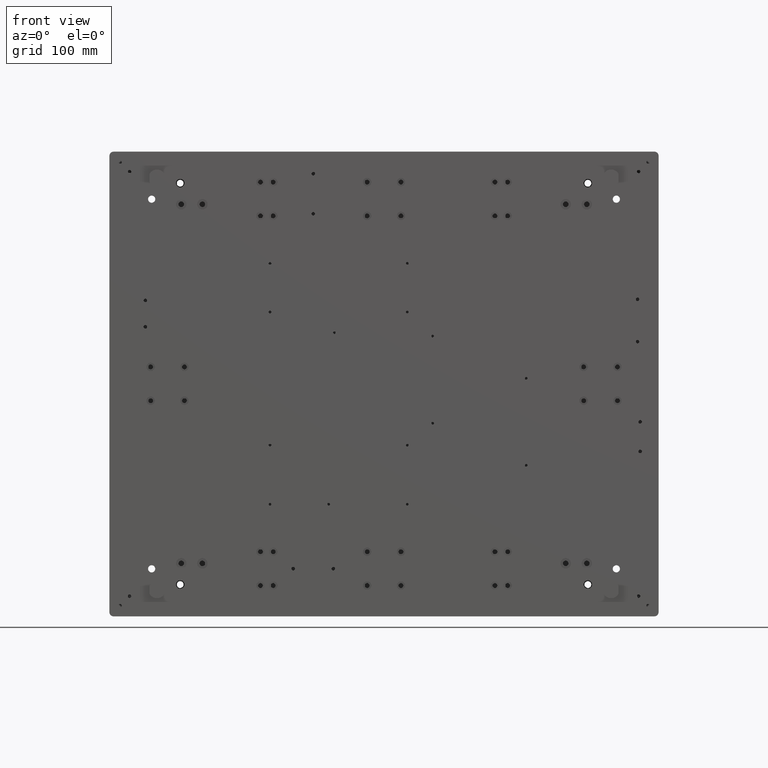
[diagram: clean part render]
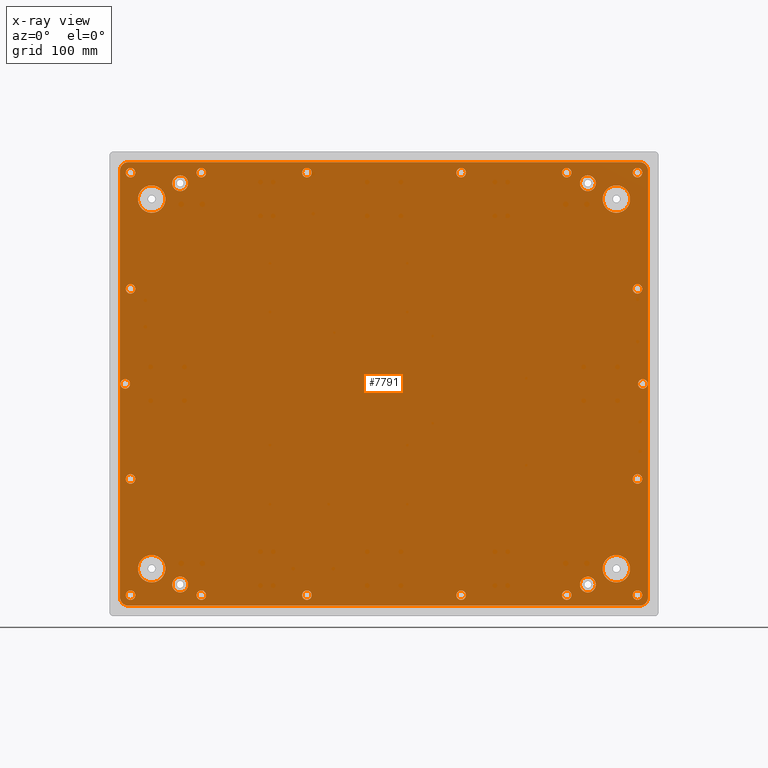
[diagram: x-ray — body ghosted, one internal face saturated and labeled with its STEP entity id]
A machine part, front view, then the same camera in x-ray: the body is ghosted and one INTERNAL B-rep face — a face not visible from any outside direction — is saturated and labeled: STEP entity #7791.
In plain terms, the highlighted planar face has unit normal (0, 1, 0).
Its self-contained STEP definition (entity closure, byte-faithful):
#170 = ORIENTED_EDGE ( 'NONE', *, *, #2572, .T. ) ;
#217 = ORIENTED_EDGE ( 'NONE', *, *, #29685, .T. ) ;
#275 = DIRECTION ( 'NONE',  ( -0.000000000000000000, -1.000000000000000000, -0.000000000000000000 ) ) ;
#343 = EDGE_LOOP ( 'NONE', ( #26153, #15022, #11797, #23972, #23938, #170, #9103, #27448 ) ) ;
#356 = DIRECTION ( 'NONE',  ( 0.000000000000000000, -0.000000000000000000, 1.000000000000000000 ) ) ;
#570 = VERTEX_POINT ( 'NONE', #24181 ) ;
#885 = AXIS2_PLACEMENT_3D ( 'NONE', #28562, #24997, #25593 ) ;
#1038 = DIRECTION ( 'NONE',  ( 0.000000000000000000, 0.000000000000000000, 1.000000000000000000 ) ) ;
#1041 = VECTOR ( 'NONE', #18596, 1000.000000000000000 ) ;
#1115 = EDGE_CURVE ( 'NONE', #23060, #23060, #11438, .T. ) ;
#1159 = DIRECTION ( 'NONE',  ( 0.000000000000000000, 0.000000000000000000, 1.000000000000000000 ) ) ;
#1370 = ORIENTED_EDGE ( 'NONE', *, *, #36584, .T. ) ;
#1463 = DIRECTION ( 'NONE',  ( 0.000000000000000000, -1.000000000000000000, 0.000000000000000000 ) ) ;
#1679 = ORIENTED_EDGE ( 'NONE', *, *, #22264, .T. ) ;
#1989 = CARTESIAN_POINT ( 'NONE',  ( -208.5487244020048934, 101.1371811005063535, 319.5000000000011937 ) ) ;
#2104 = AXIS2_PLACEMENT_3D ( 'NONE', #4217, #19288, #3629 ) ;
#2168 = EDGE_LOOP ( 'NONE', ( #18437 ) ) ;
#2171 = ORIENTED_EDGE ( 'NONE', *, *, #1115, .T. ) ;
#2202 = CARTESIAN_POINT ( 'NONE',  ( -228.5487244020049786, 101.1371811005063535, 325.0000000000012506 ) ) ;
#2347 = EDGE_LOOP ( 'NONE', ( #17965 ) ) ;
#2359 = DIRECTION ( 'NONE',  ( 0.000000000000000000, 0.000000000000000000, -1.000000000000000000 ) ) ;
#2513 = CARTESIAN_POINT ( 'NONE',  ( -275.5487244020049502, 101.1371811005063535, 609.5000000000011369 ) ) ;
#2566 = VERTEX_POINT ( 'NONE', #17240 ) ;
#2572 = EDGE_CURVE ( 'NONE', #5593, #8448, #6511, .T. ) ;
#2595 = EDGE_LOOP ( 'NONE', ( #28747 ) ) ;
#2734 = FACE_BOUND ( 'NONE', #8623, .T. ) ;
#2781 = DIRECTION ( 'NONE',  ( 0.000000000000000000, 0.000000000000000000, 1.000000000000000000 ) ) ;
#2793 = EDGE_CURVE ( 'NONE', #14890, #14890, #20094, .T. ) ;
#2803 = CARTESIAN_POINT ( 'NONE',  ( 137.4512755979950782, 101.1371811005063535, 319.5000000000011369 ) ) ;
#3029 = DIRECTION ( 'NONE',  ( -0.000000000000000000, -1.000000000000000000, -0.000000000000000000 ) ) ;
#3054 = CARTESIAN_POINT ( 'NONE',  ( -277.5487244020049502, 101.1371811005063535, 725.0000000000011369 ) ) ;
#3312 = FACE_BOUND ( 'NONE', #12731, .T. ) ;
#3567 = DIRECTION ( 'NONE',  ( 0.000000000000000000, -1.000000000000000000, 0.000000000000000000 ) ) ;
#3629 = DIRECTION ( 'NONE',  ( 0.000000000000000000, 0.000000000000000000, -1.000000000000000000 ) ) ;
#3773 = VERTEX_POINT ( 'NONE', #30945 ) ;
#3775 = EDGE_CURVE ( 'NONE', #3773, #3773, #15086, .T. ) ;
#3955 = DIRECTION ( 'NONE',  ( 0.000000000000000000, -1.000000000000000000, 0.000000000000000000 ) ) ;
#4003 = CARTESIAN_POINT ( 'NONE',  ( -255.5487244020049218, 101.1371811005063535, 340.0000000000011937 ) ) ;
#4110 = VERTEX_POINT ( 'NONE', #13234 ) ;
#4127 = VERTEX_POINT ( 'NONE', #37458 ) ;
#4217 = CARTESIAN_POINT ( 'NONE',  ( -277.5487244020049502, 101.1371811005063535, 313.0000000000011937 ) ) ;
#4320 = AXIS2_PLACEMENT_3D ( 'NONE', #35183, #8023, #29233 ) ;
#4329 = CIRCLE ( 'NONE', #37253, 7.499999999999951150 ) ;
#4477 = EDGE_CURVE ( 'NONE', #27638, #10515, #22880, .T. ) ;
#4606 = DIRECTION ( 'NONE',  ( 0.000000000000000000, 0.000000000000000000, 1.000000000000000000 ) ) ;
#4637 = ORIENTED_EDGE ( 'NONE', *, *, #2793, .T. ) ;
#4688 = DIRECTION ( 'NONE',  ( 0.000000000000000000, 0.000000000000000000, 1.000000000000000000 ) ) ;
#4730 = VERTEX_POINT ( 'NONE', #19186 ) ;
#4747 = CARTESIAN_POINT ( 'NONE',  ( 37.45127559799509243, 101.1371811005063535, 315.0000000000011937 ) ) ;
#4847 = DIRECTION ( 'NONE',  ( 0.000000000000000000, 0.000000000000000000, 1.000000000000000000 ) ) ;
#4895 = DIRECTION ( 'NONE',  ( 0.000000000000000000, 0.000000000000000000, 1.000000000000000000 ) ) ;
#4897 = CARTESIAN_POINT ( 'NONE',  ( 204.4512755979951066, 101.1371811005063535, 425.0000000000011937 ) ) ;
#5223 = CARTESIAN_POINT ( 'NONE',  ( -108.5487244020048223, 101.1371811005063535, 719.5000000000011369 ) ) ;
#5271 = CIRCLE ( 'NONE', #35656, 13.00000000000001066 ) ;
#5354 = DIRECTION ( 'NONE',  ( -0.000000000000000000, -1.000000000000000000, -0.000000000000000000 ) ) ;
#5593 = VERTEX_POINT ( 'NONE', #26332 ) ;
#5906 = CIRCLE ( 'NONE', #2104, 8.000000000000007105 ) ;
#5923 = FACE_BOUND ( 'NONE', #20495, .T. ) ;
#5985 = CARTESIAN_POINT ( 'NONE',  ( 184.4512755979951066, 101.1371811005063535, 690.0000000000011369 ) ) ;
#6025 = AXIS2_PLACEMENT_3D ( 'NONE', #23267, #10973, #4847 ) ;
#6038 = EDGE_CURVE ( 'NONE', #27638, #16382, #38381, .T. ) ;
#6117 = FACE_BOUND ( 'NONE', #17170, .T. ) ;
#6260 = DIRECTION ( 'NONE',  ( -1.000000000000000000, -0.000000000000000000, 0.000000000000000000 ) ) ;
#6316 = FACE_BOUND ( 'NONE', #16236, .T. ) ;
#6488 = EDGE_LOOP ( 'NONE', ( #31961 ) ) ;
#6511 = LINE ( 'NONE', #36833, #1041 ) ;
#6517 = AXIS2_PLACEMENT_3D ( 'NONE', #31130, #3955, #16037 ) ;
#6532 = CIRCLE ( 'NONE', #33752, 4.499999999999948486 ) ;
#6549 = DIRECTION ( 'NONE',  ( 0.000000000000000000, -1.000000000000000000, 0.000000000000000000 ) ) ;
#6922 = CARTESIAN_POINT ( 'NONE',  ( 157.4512755979951066, 101.1371811005063535, 712.5000000000012506 ) ) ;
#6947 = CARTESIAN_POINT ( 'NONE',  ( -208.5487244020048081, 101.1371811005063535, 715.0000000000010232 ) ) ;
#7057 = CARTESIAN_POINT ( 'NONE',  ( 137.4512755979951066, 101.1371811005063535, 719.5000000000010232 ) ) ;
#7166 = ORIENTED_EDGE ( 'NONE', *, *, #25648, .T. ) ;
#7273 = EDGE_CURVE ( 'NONE', #2566, #2566, #25806, .T. ) ;
#7535 = CIRCLE ( 'NONE', #32220, 8.000000000000007105 ) ;
#7650 = ORIENTED_EDGE ( 'NONE', *, *, #7841, .T. ) ;
#7667 = LINE ( 'NONE', #19756, #27882 ) ;
#7791 = ADVANCED_FACE ( 'NONE', ( #35871, #15021, #21565, #9473, #15409, #12238, #39235, #12051, #21180, #6316, #36249, #2734, #36064, #20800, #9081, #18392, #24348, #36442, #33274, #8902, #30484, #5923, #6117, #26933, #14823, #18194, #3312 ), #33078, .T. ) ;
#7823 = ORIENTED_EDGE ( 'NONE', *, *, #13134, .T. ) ;
#7841 = EDGE_CURVE ( 'NONE', #7950, #7950, #30790, .T. ) ;
#7875 = CIRCLE ( 'NONE', #885, 4.499999999999948486 ) ;
#7950 = VERTEX_POINT ( 'NONE', #1989 ) ;
#8023 = DIRECTION ( 'NONE',  ( 0.000000000000000000, -1.000000000000000000, 0.000000000000000000 ) ) ;
#8031 = CARTESIAN_POINT ( 'NONE',  ( 214.4512755979951351, 101.1371811005063535, 313.0000000000011937 ) ) ;
#8061 = CARTESIAN_POINT ( 'NONE',  ( 204.4512755979951066, 101.1371811005063535, 605.0000000000011369 ) ) ;
#8333 = CARTESIAN_POINT ( 'NONE',  ( 206.4512755979950782, 101.1371811005063535, 717.0000000000011369 ) ) ;
#8448 = VERTEX_POINT ( 'NONE', #8031 ) ;
#8623 = EDGE_LOOP ( 'NONE', ( #21843 ) ) ;
#8675 = VERTEX_POINT ( 'NONE', #2513 ) ;
#8827 = VECTOR ( 'NONE', #11205, 1000.000000000000000 ) ;
#8828 = EDGE_CURVE ( 'NONE', #33292, #33292, #6532, .T. ) ;
#8902 = FACE_BOUND ( 'NONE', #9178, .T. ) ;
#9037 = EDGE_CURVE ( 'NONE', #5593, #16382, #28720, .T. ) ;
#9081 = FACE_BOUND ( 'NONE', #29491, .T. ) ;
#9103 = ORIENTED_EDGE ( 'NONE', *, *, #17100, .F. ) ;
#9124 = CIRCLE ( 'NONE', #31277, 4.500000000000003553 ) ;
#9147 = CARTESIAN_POINT ( 'NONE',  ( -228.5487244020049218, 101.1371811005063535, 705.0000000000011369 ) ) ;
#9150 = CARTESIAN_POINT ( 'NONE',  ( 157.4512755979950782, 101.1371811005063535, 325.0000000000011937 ) ) ;
#9164 = CARTESIAN_POINT ( 'NONE',  ( 206.4512755979951066, 101.1371811005063535, 305.0000000000011937 ) ) ;
#9178 = EDGE_LOOP ( 'NONE', ( #36142 ) ) ;
#9395 = VERTEX_POINT ( 'NONE', #21488 ) ;
#9406 = AXIS2_PLACEMENT_3D ( 'NONE', #2202, #14294, #26398 ) ;
#9473 = FACE_BOUND ( 'NONE', #14512, .T. ) ;
#9502 = ORIENTED_EDGE ( 'NONE', *, *, #22499, .T. ) ;
#9616 = EDGE_LOOP ( 'NONE', ( #15584 ) ) ;
#9724 = AXIS2_PLACEMENT_3D ( 'NONE', #8333, #5354, #2359 ) ;
#9895 = ORIENTED_EDGE ( 'NONE', *, *, #33053, .T. ) ;
#10022 = CARTESIAN_POINT ( 'NONE',  ( 204.4512755979951066, 101.1371811005063535, 609.5000000000010232 ) ) ;
#10407 = AXIS2_PLACEMENT_3D ( 'NONE', #22263, #31791, #16901 ) ;
#10452 = EDGE_CURVE ( 'NONE', #4110, #4110, #33145, .T. ) ;
#10463 = CARTESIAN_POINT ( 'NONE',  ( -285.5487244020049502, 101.1371811005063535, 717.0000000000011369 ) ) ;
#10488 = CIRCLE ( 'NONE', #26352, 4.500000000000059508 ) ;
#10497 = DIRECTION ( 'NONE',  ( 0.000000000000000000, -1.000000000000000000, 0.000000000000000000 ) ) ;
#10515 = VERTEX_POINT ( 'NONE', #10463 ) ;
#10555 = AXIS2_PLACEMENT_3D ( 'NONE', #37930, #25824, #4606 ) ;
#10885 = DIRECTION ( 'NONE',  ( 0.000000000000000000, -1.000000000000000000, 0.000000000000000000 ) ) ;
#10973 = DIRECTION ( 'NONE',  ( 0.000000000000000000, -1.000000000000000000, 0.000000000000000000 ) ) ;
#11200 = CIRCLE ( 'NONE', #10555, 4.500000000000059508 ) ;
#11205 = DIRECTION ( 'NONE',  ( 1.000000000000000000, -0.000000000000000000, 0.000000000000000000 ) ) ;
#11378 = EDGE_CURVE ( 'NONE', #32858, #32858, #7875, .T. ) ;
#11438 = CIRCLE ( 'NONE', #24745, 13.00000000000001066 ) ;
#11443 = AXIS2_PLACEMENT_3D ( 'NONE', #28875, #37807, #4688 ) ;
#11445 = VERTEX_POINT ( 'NONE', #11634 ) ;
#11634 = CARTESIAN_POINT ( 'NONE',  ( -275.5487244020049502, 101.1371811005063535, 429.5000000000011937 ) ) ;
#11642 = CARTESIAN_POINT ( 'NONE',  ( -228.5487244020049218, 101.1371811005063535, 712.5000000000012506 ) ) ;
#11689 = VERTEX_POINT ( 'NONE', #32529 ) ;
#11712 = EDGE_CURVE ( 'NONE', #8675, #8675, #14233, .T. ) ;
#11793 = EDGE_LOOP ( 'NONE', ( #33291 ) ) ;
#11797 = ORIENTED_EDGE ( 'NONE', *, *, #4477, .F. ) ;
#11856 = CARTESIAN_POINT ( 'NONE',  ( -208.5487244020048934, 101.1371811005063535, 315.0000000000011937 ) ) ;
#12035 = VERTEX_POINT ( 'NONE', #36232 ) ;
#12051 = FACE_BOUND ( 'NONE', #2595, .T. ) ;
#12238 = FACE_BOUND ( 'NONE', #24191, .T. ) ;
#12593 = EDGE_CURVE ( 'NONE', #24452, #14971, #5906, .T. ) ;
#12731 = EDGE_LOOP ( 'NONE', ( #217 ) ) ;
#12940 = EDGE_LOOP ( 'NONE', ( #23583 ) ) ;
#13088 = AXIS2_PLACEMENT_3D ( 'NONE', #25329, #25127, #34254 ) ;
#13134 = EDGE_CURVE ( 'NONE', #9395, #9395, #26202, .T. ) ;
#13234 = CARTESIAN_POINT ( 'NONE',  ( 37.45127559799509243, 101.1371811005063535, 319.5000000000011937 ) ) ;
#13529 = CARTESIAN_POINT ( 'NONE',  ( -255.5487244020049218, 101.1371811005063535, 703.0000000000011369 ) ) ;
#13557 = DIRECTION ( 'NONE',  ( 0.000000000000000000, 0.000000000000000000, 1.000000000000000000 ) ) ;
#13590 = EDGE_CURVE ( 'NONE', #16904, #16904, #9124, .T. ) ;
#13647 = DIRECTION ( 'NONE',  ( 0.000000000000000000, -1.000000000000000000, 0.000000000000000000 ) ) ;
#13654 = VERTEX_POINT ( 'NONE', #31706 ) ;
#13680 = DIRECTION ( 'NONE',  ( 0.000000000000000000, 0.000000000000000000, 1.000000000000000000 ) ) ;
#13744 = CARTESIAN_POINT ( 'NONE',  ( 204.4512755979951066, 101.1371811005063535, 429.5000000000011937 ) ) ;
#13858 = VERTEX_POINT ( 'NONE', #11642 ) ;
#13943 = CARTESIAN_POINT ( 'NONE',  ( 204.4512755979950498, 101.1371811005063535, 319.5000000000011369 ) ) ;
#13999 = EDGE_CURVE ( 'NONE', #19490, #19490, #27525, .T. ) ;
#14233 = CIRCLE ( 'NONE', #36386, 4.500000000000059508 ) ;
#14262 = EDGE_LOOP ( 'NONE', ( #2171 ) ) ;
#14294 = DIRECTION ( 'NONE',  ( 0.000000000000000000, -1.000000000000000000, 0.000000000000000000 ) ) ;
#14512 = EDGE_LOOP ( 'NONE', ( #1370 ) ) ;
#14823 = FACE_BOUND ( 'NONE', #20998, .T. ) ;
#14890 = VERTEX_POINT ( 'NONE', #2803 ) ;
#14971 = VERTEX_POINT ( 'NONE', #36436 ) ;
#15021 = FACE_BOUND ( 'NONE', #2347, .T. ) ;
#15022 = ORIENTED_EDGE ( 'NONE', *, *, #25707, .T. ) ;
#15086 = CIRCLE ( 'NONE', #29025, 7.500000000000007105 ) ;
#15348 = CARTESIAN_POINT ( 'NONE',  ( 206.4512755979951066, 101.1371811005063535, 305.0000000000011937 ) ) ;
#15409 = FACE_BOUND ( 'NONE', #38602, .T. ) ;
#15584 = ORIENTED_EDGE ( 'NONE', *, *, #10452, .T. ) ;
#15624 = EDGE_CURVE ( 'NONE', #32384, #32384, #11200, .T. ) ;
#15713 = CIRCLE ( 'NONE', #19568, 13.00000000000001066 ) ;
#15854 = DIRECTION ( 'NONE',  ( 0.000000000000000000, -1.000000000000000000, 0.000000000000000000 ) ) ;
#16037 = DIRECTION ( 'NONE',  ( 0.000000000000000000, 0.000000000000000000, 1.000000000000000000 ) ) ;
#16051 = EDGE_CURVE ( 'NONE', #22017, #22017, #37824, .T. ) ;
#16236 = EDGE_LOOP ( 'NONE', ( #4637 ) ) ;
#16382 = VERTEX_POINT ( 'NONE', #17182 ) ;
#16500 = AXIS2_PLACEMENT_3D ( 'NONE', #8061, #19554, #4895 ) ;
#16665 = DIRECTION ( 'NONE',  ( 0.000000000000000000, -1.000000000000000000, 0.000000000000000000 ) ) ;
#16767 = DIRECTION ( 'NONE',  ( 0.000000000000000000, -1.000000000000000000, 0.000000000000000000 ) ) ;
#16901 = DIRECTION ( 'NONE',  ( 0.000000000000000000, 0.000000000000000000, 1.000000000000000000 ) ) ;
#16904 = VERTEX_POINT ( 'NONE', #13744 ) ;
#17030 = CARTESIAN_POINT ( 'NONE',  ( -275.5487244020049502, 101.1371811005063535, 425.0000000000011937 ) ) ;
#17100 = EDGE_CURVE ( 'NONE', #28070, #8448, #7535, .T. ) ;
#17170 = EDGE_LOOP ( 'NONE', ( #9502 ) ) ;
#17182 = CARTESIAN_POINT ( 'NONE',  ( 206.4512755979950498, 101.1371811005063535, 725.0000000000011369 ) ) ;
#17240 = CARTESIAN_POINT ( 'NONE',  ( 37.45127559799512085, 101.1371811005063535, 719.5000000000010232 ) ) ;
#17458 = EDGE_LOOP ( 'NONE', ( #21223 ) ) ;
#17931 = AXIS2_PLACEMENT_3D ( 'NONE', #17030, #32117, #37669 ) ;
#17965 = ORIENTED_EDGE ( 'NONE', *, *, #39256, .T. ) ;
#18017 = CARTESIAN_POINT ( 'NONE',  ( -208.5487244020048081, 101.1371811005063535, 719.5000000000010232 ) ) ;
#18194 = FACE_BOUND ( 'NONE', #6488, .T. ) ;
#18392 = FACE_BOUND ( 'NONE', #2168, .T. ) ;
#18437 = ORIENTED_EDGE ( 'NONE', *, *, #25548, .T. ) ;
#18596 = DIRECTION ( 'NONE',  ( 1.374038396813312784E-16, -0.000000000000000000, -1.000000000000000000 ) ) ;
#19186 = CARTESIAN_POINT ( 'NONE',  ( -275.5487244020049502, 101.1371811005063535, 319.5000000000011937 ) ) ;
#19288 = DIRECTION ( 'NONE',  ( -0.000000000000000000, -1.000000000000000000, -0.000000000000000000 ) ) ;
#19490 = VERTEX_POINT ( 'NONE', #13943 ) ;
#19554 = DIRECTION ( 'NONE',  ( 0.000000000000000000, -1.000000000000000000, 0.000000000000000000 ) ) ;
#19568 = AXIS2_PLACEMENT_3D ( 'NONE', #5985, #3567, #33334 ) ;
#19655 = AXIS2_PLACEMENT_3D ( 'NONE', #9147, #15854, #27962 ) ;
#19756 = CARTESIAN_POINT ( 'NONE',  ( -285.5487244020050071, 101.1371811005063535, 313.0000000000011937 ) ) ;
#20094 = CIRCLE ( 'NONE', #13088, 4.500000000000003553 ) ;
#20330 = CIRCLE ( 'NONE', #16500, 4.499999999999948486 ) ;
#20350 = DIRECTION ( 'NONE',  ( 0.000000000000000000, 0.000000000000000000, 1.000000000000000000 ) ) ;
#20495 = EDGE_LOOP ( 'NONE', ( #30239 ) ) ;
#20700 = CARTESIAN_POINT ( 'NONE',  ( -275.5487244020049502, 101.1371811005063535, 715.0000000000010232 ) ) ;
#20800 = FACE_BOUND ( 'NONE', #24753, .T. ) ;
#20929 = EDGE_CURVE ( 'NONE', #570, #570, #35644, .T. ) ;
#20981 = AXIS2_PLACEMENT_3D ( 'NONE', #27432, #275, #21097 ) ;
#20998 = EDGE_LOOP ( 'NONE', ( #28732 ) ) ;
#21097 = DIRECTION ( 'NONE',  ( 0.000000000000000000, 0.000000000000000000, -1.000000000000000000 ) ) ;
#21180 = FACE_BOUND ( 'NONE', #9616, .T. ) ;
#21223 = ORIENTED_EDGE ( 'NONE', *, *, #15624, .T. ) ;
#21488 = CARTESIAN_POINT ( 'NONE',  ( 184.4512755979951066, 101.1371811005063535, 353.0000000000011937 ) ) ;
#21565 = FACE_BOUND ( 'NONE', #14262, .T. ) ;
#21843 = ORIENTED_EDGE ( 'NONE', *, *, #13590, .T. ) ;
#21974 = AXIS2_PLACEMENT_3D ( 'NONE', #25570, #10497, #23575 ) ;
#22017 = VERTEX_POINT ( 'NONE', #24421 ) ;
#22263 = CARTESIAN_POINT ( 'NONE',  ( -275.5487244020049502, 101.1371811005063535, 315.0000000000011937 ) ) ;
#22264 = EDGE_CURVE ( 'NONE', #4730, #4730, #34476, .T. ) ;
#22317 = VERTEX_POINT ( 'NONE', #10022 ) ;
#22476 = AXIS2_PLACEMENT_3D ( 'NONE', #27517, #30096, #356 ) ;
#22499 = EDGE_CURVE ( 'NONE', #11445, #11445, #23649, .T. ) ;
#22880 = CIRCLE ( 'NONE', #20981, 8.000000000000007105 ) ;
#23060 = VERTEX_POINT ( 'NONE', #13529 ) ;
#23267 = CARTESIAN_POINT ( 'NONE',  ( 204.4512755979950498, 101.1371811005063535, 315.0000000000011369 ) ) ;
#23473 = ORIENTED_EDGE ( 'NONE', *, *, #13999, .T. ) ;
#23575 = DIRECTION ( 'NONE',  ( 0.000000000000000000, 0.000000000000000000, 1.000000000000000000 ) ) ;
#23583 = ORIENTED_EDGE ( 'NONE', *, *, #11712, .T. ) ;
#23649 = CIRCLE ( 'NONE', #17931, 4.500000000000003553 ) ;
#23837 = DIRECTION ( 'NONE',  ( 0.000000000000000000, -1.000000000000000000, 0.000000000000000000 ) ) ;
#23938 = ORIENTED_EDGE ( 'NONE', *, *, #9037, .F. ) ;
#23967 = DIRECTION ( 'NONE',  ( 0.000000000000000000, -1.000000000000000000, 0.000000000000000000 ) ) ;
#23972 = ORIENTED_EDGE ( 'NONE', *, *, #6038, .T. ) ;
#23985 = CIRCLE ( 'NONE', #4320, 4.499999999999948486 ) ;
#24088 = CARTESIAN_POINT ( 'NONE',  ( -285.5487244020050071, 101.1371811005063535, 313.0000000000011937 ) ) ;
#24181 = CARTESIAN_POINT ( 'NONE',  ( -108.5487244020049076, 101.1371811005063535, 319.5000000000011937 ) ) ;
#24191 = EDGE_LOOP ( 'NONE', ( #1679 ) ) ;
#24220 = DIRECTION ( 'NONE',  ( 0.000000000000000000, 0.000000000000000000, 1.000000000000000000 ) ) ;
#24348 = FACE_BOUND ( 'NONE', #35223, .T. ) ;
#24421 = CARTESIAN_POINT ( 'NONE',  ( -280.5487244020048934, 101.1371811005063535, 519.5000000000012506 ) ) ;
#24452 = VERTEX_POINT ( 'NONE', #24088 ) ;
#24745 = AXIS2_PLACEMENT_3D ( 'NONE', #34793, #1463, #13557 ) ;
#24753 = EDGE_LOOP ( 'NONE', ( #7166 ) ) ;
#24864 = LINE ( 'NONE', #15348, #37708 ) ;
#24997 = DIRECTION ( 'NONE',  ( 0.000000000000000000, -1.000000000000000000, 0.000000000000000000 ) ) ;
#25127 = DIRECTION ( 'NONE',  ( 0.000000000000000000, -1.000000000000000000, 0.000000000000000000 ) ) ;
#25329 = CARTESIAN_POINT ( 'NONE',  ( 137.4512755979950782, 101.1371811005063535, 315.0000000000011369 ) ) ;
#25462 = DIRECTION ( 'NONE',  ( 0.000000000000000000, -1.000000000000000000, 0.000000000000000000 ) ) ;
#25548 = EDGE_CURVE ( 'NONE', #37192, #37192, #37404, .T. ) ;
#25570 = CARTESIAN_POINT ( 'NONE',  ( -280.5487244020048934, 101.1371811005063535, 515.0000000000012506 ) ) ;
#25593 = DIRECTION ( 'NONE',  ( 0.000000000000000000, 0.000000000000000000, 1.000000000000000000 ) ) ;
#25600 = CARTESIAN_POINT ( 'NONE',  ( 184.4512755979951066, 101.1371811005063535, 340.0000000000011937 ) ) ;
#25648 = EDGE_CURVE ( 'NONE', #22317, #22317, #20330, .T. ) ;
#25707 = EDGE_CURVE ( 'NONE', #24452, #10515, #7667, .T. ) ;
#25803 = DIRECTION ( 'NONE',  ( 0.000000000000000000, 0.000000000000000000, 1.000000000000000000 ) ) ;
#25806 = CIRCLE ( 'NONE', #35325, 4.499999999999948486 ) ;
#25824 = DIRECTION ( 'NONE',  ( 0.000000000000000000, -1.000000000000000000, 0.000000000000000000 ) ) ;
#26097 = EDGE_LOOP ( 'NONE', ( #32831 ) ) ;
#26153 = ORIENTED_EDGE ( 'NONE', *, *, #12593, .F. ) ;
#26202 = CIRCLE ( 'NONE', #30596, 13.00000000000001066 ) ;
#26332 = CARTESIAN_POINT ( 'NONE',  ( 214.4512755979950782, 101.1371811005063535, 717.0000000000011369 ) ) ;
#26352 = AXIS2_PLACEMENT_3D ( 'NONE', #20700, #29810, #27029 ) ;
#26398 = DIRECTION ( 'NONE',  ( 0.000000000000000000, 0.000000000000000000, 1.000000000000000000 ) ) ;
#26516 = CIRCLE ( 'NONE', #9406, 7.500000000000007105 ) ;
#26933 = FACE_BOUND ( 'NONE', #11793, .T. ) ;
#27029 = DIRECTION ( 'NONE',  ( 0.000000000000000000, 0.000000000000000000, 1.000000000000000000 ) ) ;
#27432 = CARTESIAN_POINT ( 'NONE',  ( -277.5487244020049502, 101.1371811005063535, 717.0000000000011369 ) ) ;
#27448 = ORIENTED_EDGE ( 'NONE', *, *, #34891, .T. ) ;
#27517 = CARTESIAN_POINT ( 'NONE',  ( -277.5487244020049502, 101.1371811005063535, 717.0000000000011369 ) ) ;
#27525 = CIRCLE ( 'NONE', #6025, 4.500000000000003553 ) ;
#27638 = VERTEX_POINT ( 'NONE', #3054 ) ;
#27882 = VECTOR ( 'NONE', #38578, 1000.000000000000000 ) ;
#27962 = DIRECTION ( 'NONE',  ( 0.000000000000000000, 0.000000000000000000, 1.000000000000000000 ) ) ;
#28070 = VERTEX_POINT ( 'NONE', #9164 ) ;
#28074 = EDGE_LOOP ( 'NONE', ( #23473 ) ) ;
#28562 = CARTESIAN_POINT ( 'NONE',  ( 209.4512755979950782, 101.1371811005063535, 515.0000000000011369 ) ) ;
#28694 = AXIS2_PLACEMENT_3D ( 'NONE', #4747, #10885, #35660 ) ;
#28720 = CIRCLE ( 'NONE', #9724, 8.000000000000007105 ) ;
#28732 = ORIENTED_EDGE ( 'NONE', *, *, #36173, .T. ) ;
#28747 = ORIENTED_EDGE ( 'NONE', *, *, #20929, .T. ) ;
#28875 = CARTESIAN_POINT ( 'NONE',  ( 137.4512755979951066, 101.1371811005063535, 715.0000000000010232 ) ) ;
#29025 = AXIS2_PLACEMENT_3D ( 'NONE', #9150, #23837, #24220 ) ;
#29146 = CIRCLE ( 'NONE', #19655, 7.500000000000062172 ) ;
#29233 = DIRECTION ( 'NONE',  ( 0.000000000000000000, 0.000000000000000000, 1.000000000000000000 ) ) ;
#29491 = EDGE_LOOP ( 'NONE', ( #9895 ) ) ;
#29524 = EDGE_LOOP ( 'NONE', ( #33357 ) ) ;
#29685 = EDGE_CURVE ( 'NONE', #33729, #33729, #26516, .T. ) ;
#29687 = CARTESIAN_POINT ( 'NONE',  ( 209.4512755979950782, 101.1371811005063535, 519.5000000000010232 ) ) ;
#29810 = DIRECTION ( 'NONE',  ( 0.000000000000000000, -1.000000000000000000, 0.000000000000000000 ) ) ;
#29948 = CARTESIAN_POINT ( 'NONE',  ( 37.45127559799512085, 101.1371811005063535, 715.0000000000010232 ) ) ;
#30096 = DIRECTION ( 'NONE',  ( 0.000000000000000000, 1.000000000000000000, 0.000000000000000000 ) ) ;
#30239 = ORIENTED_EDGE ( 'NONE', *, *, #16051, .T. ) ;
#30484 = FACE_BOUND ( 'NONE', #12940, .T. ) ;
#30596 = AXIS2_PLACEMENT_3D ( 'NONE', #25600, #16665, #25803 ) ;
#30790 = CIRCLE ( 'NONE', #37693, 4.500000000000003553 ) ;
#30945 = CARTESIAN_POINT ( 'NONE',  ( 157.4512755979950782, 101.1371811005063535, 332.5000000000011937 ) ) ;
#30987 = DIRECTION ( 'NONE',  ( 0.000000000000000000, -1.000000000000000000, 0.000000000000000000 ) ) ;
#31130 = CARTESIAN_POINT ( 'NONE',  ( -108.5487244020049076, 101.1371811005063535, 315.0000000000011937 ) ) ;
#31277 = AXIS2_PLACEMENT_3D ( 'NONE', #4897, #16767, #20350 ) ;
#31430 = CARTESIAN_POINT ( 'NONE',  ( -277.5487244020049502, 101.1371811005063535, 725.0000000000011369 ) ) ;
#31706 = CARTESIAN_POINT ( 'NONE',  ( -275.5487244020049502, 101.1371811005063535, 719.5000000000011369 ) ) ;
#31791 = DIRECTION ( 'NONE',  ( 0.000000000000000000, -1.000000000000000000, 0.000000000000000000 ) ) ;
#31961 = ORIENTED_EDGE ( 'NONE', *, *, #3775, .T. ) ;
#32117 = DIRECTION ( 'NONE',  ( 0.000000000000000000, -1.000000000000000000, 0.000000000000000000 ) ) ;
#32220 = AXIS2_PLACEMENT_3D ( 'NONE', #33180, #3029, #37082 ) ;
#32384 = VERTEX_POINT ( 'NONE', #5223 ) ;
#32529 = CARTESIAN_POINT ( 'NONE',  ( 204.4512755979950498, 101.1371811005063535, 719.5000000000011369 ) ) ;
#32831 = ORIENTED_EDGE ( 'NONE', *, *, #8828, .T. ) ;
#32858 = VERTEX_POINT ( 'NONE', #29687 ) ;
#33053 = EDGE_CURVE ( 'NONE', #11689, #11689, #23985, .T. ) ;
#33078 = PLANE ( 'NONE',  #22476 ) ;
#33145 = CIRCLE ( 'NONE', #28694, 4.500000000000003553 ) ;
#33180 = CARTESIAN_POINT ( 'NONE',  ( 206.4512755979951066, 101.1371811005063535, 313.0000000000011937 ) ) ;
#33274 = FACE_BOUND ( 'NONE', #26097, .T. ) ;
#33291 = ORIENTED_EDGE ( 'NONE', *, *, #37903, .T. ) ;
#33292 = VERTEX_POINT ( 'NONE', #18017 ) ;
#33334 = DIRECTION ( 'NONE',  ( 0.000000000000000000, 0.000000000000000000, 1.000000000000000000 ) ) ;
#33357 = ORIENTED_EDGE ( 'NONE', *, *, #11378, .T. ) ;
#33729 = VERTEX_POINT ( 'NONE', #36715 ) ;
#33752 = AXIS2_PLACEMENT_3D ( 'NONE', #6947, #34102, #13680 ) ;
#34075 = VERTEX_POINT ( 'NONE', #6922 ) ;
#34102 = DIRECTION ( 'NONE',  ( 0.000000000000000000, -1.000000000000000000, 0.000000000000000000 ) ) ;
#34254 = DIRECTION ( 'NONE',  ( 0.000000000000000000, 0.000000000000000000, 1.000000000000000000 ) ) ;
#34472 = CARTESIAN_POINT ( 'NONE',  ( -275.5487244020049502, 101.1371811005063535, 605.0000000000011369 ) ) ;
#34476 = CIRCLE ( 'NONE', #10407, 4.500000000000003553 ) ;
#34481 = EDGE_LOOP ( 'NONE', ( #7650 ) ) ;
#34601 = DIRECTION ( 'NONE',  ( 0.000000000000000000, 0.000000000000000000, 1.000000000000000000 ) ) ;
#34793 = CARTESIAN_POINT ( 'NONE',  ( -255.5487244020049218, 101.1371811005063535, 690.0000000000011369 ) ) ;
#34891 = EDGE_CURVE ( 'NONE', #28070, #14971, #24864, .T. ) ;
#35140 = EDGE_CURVE ( 'NONE', #13654, #13654, #10488, .T. ) ;
#35183 = CARTESIAN_POINT ( 'NONE',  ( 204.4512755979950498, 101.1371811005063535, 715.0000000000011369 ) ) ;
#35223 = EDGE_LOOP ( 'NONE', ( #36911 ) ) ;
#35325 = AXIS2_PLACEMENT_3D ( 'NONE', #29948, #6549, #2781 ) ;
#35644 = CIRCLE ( 'NONE', #6517, 4.500000000000003553 ) ;
#35656 = AXIS2_PLACEMENT_3D ( 'NONE', #4003, #30987, #1038 ) ;
#35660 = DIRECTION ( 'NONE',  ( 0.000000000000000000, 0.000000000000000000, 1.000000000000000000 ) ) ;
#35871 = FACE_OUTER_BOUND ( 'NONE', #343, .T. ) ;
#36064 = FACE_BOUND ( 'NONE', #29524, .T. ) ;
#36142 = ORIENTED_EDGE ( 'NONE', *, *, #35140, .T. ) ;
#36173 = EDGE_CURVE ( 'NONE', #34075, #34075, #4329, .T. ) ;
#36232 = CARTESIAN_POINT ( 'NONE',  ( -255.5487244020049218, 101.1371811005063535, 353.0000000000011937 ) ) ;
#36249 = FACE_BOUND ( 'NONE', #28074, .T. ) ;
#36386 = AXIS2_PLACEMENT_3D ( 'NONE', #34472, #13647, #1159 ) ;
#36436 = CARTESIAN_POINT ( 'NONE',  ( -277.5487244020049502, 101.1371811005063535, 305.0000000000011937 ) ) ;
#36442 = FACE_BOUND ( 'NONE', #17458, .T. ) ;
#36584 = EDGE_CURVE ( 'NONE', #4127, #4127, #15713, .T. ) ;
#36715 = CARTESIAN_POINT ( 'NONE',  ( -228.5487244020049786, 101.1371811005063535, 332.5000000000012506 ) ) ;
#36833 = CARTESIAN_POINT ( 'NONE',  ( 214.4512755979950782, 101.1371811005063535, 717.0000000000011369 ) ) ;
#36911 = ORIENTED_EDGE ( 'NONE', *, *, #7273, .T. ) ;
#37082 = DIRECTION ( 'NONE',  ( 0.000000000000000000, 0.000000000000000000, -1.000000000000000000 ) ) ;
#37192 = VERTEX_POINT ( 'NONE', #7057 ) ;
#37253 = AXIS2_PLACEMENT_3D ( 'NONE', #38170, #25462, #34601 ) ;
#37404 = CIRCLE ( 'NONE', #11443, 4.499999999999948486 ) ;
#37421 = DIRECTION ( 'NONE',  ( 0.000000000000000000, 0.000000000000000000, 1.000000000000000000 ) ) ;
#37458 = CARTESIAN_POINT ( 'NONE',  ( 184.4512755979951066, 101.1371811005063535, 703.0000000000011369 ) ) ;
#37669 = DIRECTION ( 'NONE',  ( 0.000000000000000000, 0.000000000000000000, 1.000000000000000000 ) ) ;
#37693 = AXIS2_PLACEMENT_3D ( 'NONE', #11856, #23967, #37421 ) ;
#37708 = VECTOR ( 'NONE', #6260, 1000.000000000000000 ) ;
#37807 = DIRECTION ( 'NONE',  ( 0.000000000000000000, -1.000000000000000000, 0.000000000000000000 ) ) ;
#37824 = CIRCLE ( 'NONE', #21974, 4.500000000000059508 ) ;
#37903 = EDGE_CURVE ( 'NONE', #13858, #13858, #29146, .T. ) ;
#37930 = CARTESIAN_POINT ( 'NONE',  ( -108.5487244020048223, 101.1371811005063535, 715.0000000000010232 ) ) ;
#38170 = CARTESIAN_POINT ( 'NONE',  ( 157.4512755979951066, 101.1371811005063535, 705.0000000000012506 ) ) ;
#38381 = LINE ( 'NONE', #31430, #8827 ) ;
#38578 = DIRECTION ( 'NONE',  ( 1.374038396813312784E-16, -0.000000000000000000, 1.000000000000000000 ) ) ;
#38602 = EDGE_LOOP ( 'NONE', ( #7823 ) ) ;
#39235 = FACE_BOUND ( 'NONE', #34481, .T. ) ;
#39256 = EDGE_CURVE ( 'NONE', #12035, #12035, #5271, .T. ) ;